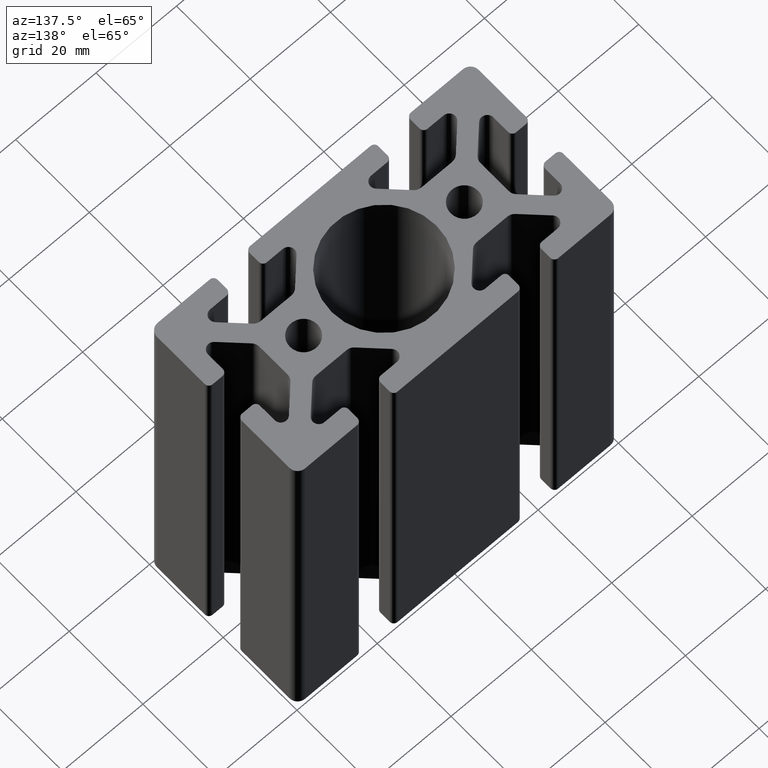
[diagram: clean part render]
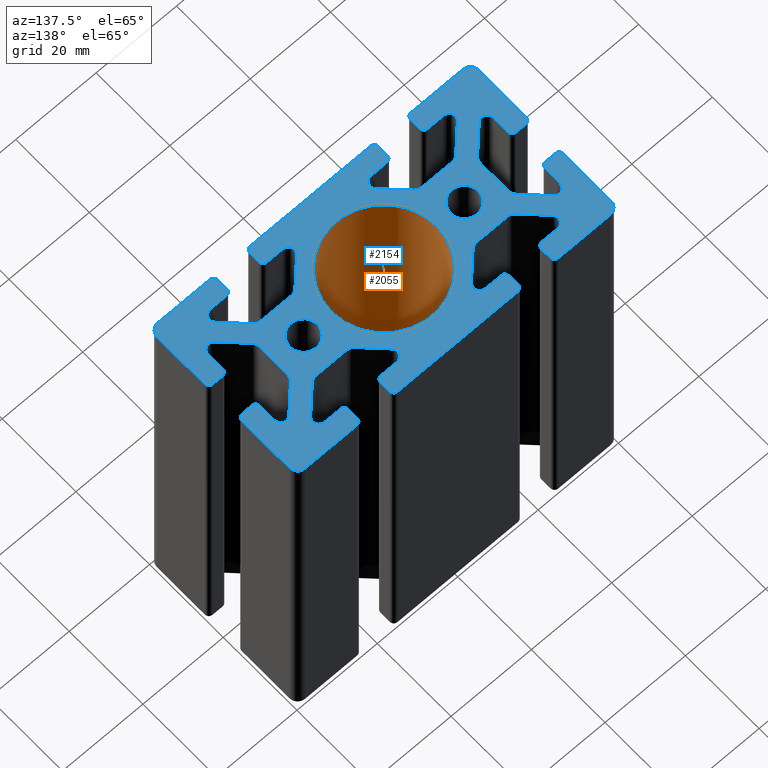
[diagram: same view with the hole feature highlighted: cylindrical wall and planar end face, labeled with their STEP entity ids]
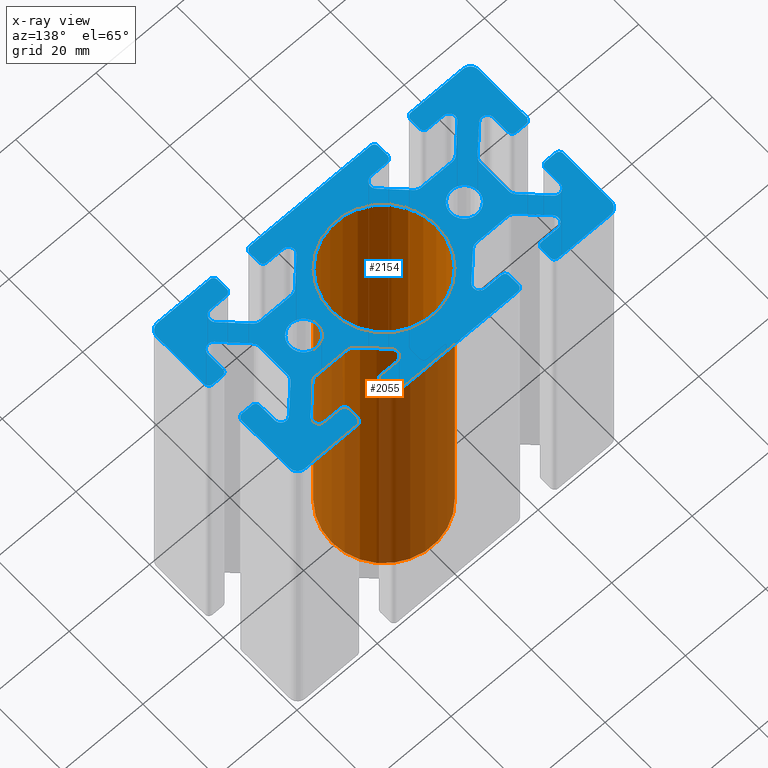
[diagram: x-ray of the same camera — body ghosted, the hole faces saturated]
A machine part, auxiliary view. The highlighted faces form one hole feature of diameter 26 mm: the cylindrical wall (entity #2055, orange) and its adjacent planar end face (entity #2154, blue) — they share a circular edge in the B-rep.
The next image is the same camera in x-ray (body ghosted, the hole faces saturated) — the bore reads through the body.
Wall:
#486=FACE_BOUND('',#606,.T.);
#495=FACE_OUTER_BOUND('',#605,.T.);
#605=EDGE_LOOP('',(#1365));
#606=EDGE_LOOP('',(#1366));
#723=CIRCLE('',#2169,13.);
#724=CIRCLE('',#2170,13.);
#833=VERTEX_POINT('',#3039);
#834=VERTEX_POINT('',#3041);
#1047=EDGE_CURVE('',#833,#833,#723,.T.);
#1048=EDGE_CURVE('',#834,#834,#724,.T.);
#1365=ORIENTED_EDGE('',*,*,#1047,.F.);
#1366=ORIENTED_EDGE('',*,*,#1048,.F.);
#2000=CYLINDRICAL_SURFACE('',#2168,13.);
#2055=ADVANCED_FACE('',(#495,#486),#2000,.F.);
#2168=AXIS2_PLACEMENT_3D('',#3038,#2392,#2393);
#2169=AXIS2_PLACEMENT_3D('',#3040,#2394,#2395);
#2170=AXIS2_PLACEMENT_3D('',#3042,#2396,#2397);
#2392=DIRECTION('center_axis',(0.,0.,1.));
#2393=DIRECTION('ref_axis',(-1.,0.,0.));
#2394=DIRECTION('center_axis',(0.,0.,-1.));
#2395=DIRECTION('ref_axis',(-1.,0.,0.));
#2396=DIRECTION('center_axis',(0.,0.,1.));
#2397=DIRECTION('ref_axis',(-1.,0.,0.));
#3038=CARTESIAN_POINT('Origin',(0.,0.,0.));
#3039=CARTESIAN_POINT('',(13.,-1.59204083889156E-15,100.));
#3040=CARTESIAN_POINT('Origin',(0.,0.,100.));
#3041=CARTESIAN_POINT('',(13.,1.59204083889156E-15,0.));
#3042=CARTESIAN_POINT('Origin',(0.,0.,0.));
End face:
#15=LINE('',#3051,#223);
#20=LINE('',#3065,#228);
#24=LINE('',#3077,#232);
#28=LINE('',#3089,#236);
#32=LINE('',#3101,#240);
#36=LINE('',#3113,#244);
#40=LINE('',#3125,#248);
#45=LINE('',#3144,#253);
#50=LINE('',#3158,#258);
#54=LINE('',#3170,#262);
#58=LINE('',#3182,#266);
#62=LINE('',#3194,#270);
#66=LINE('',#3206,#274);
#70=LINE('',#3218,#278);
#75=LINE('',#3237,#283);
#80=LINE('',#3251,#288);
#84=LINE('',#3263,#292);
#88=LINE('',#3275,#296);
#92=LINE('',#3287,#300);
#96=LINE('',#3299,#304);
#100=LINE('',#3311,#308);
#105=LINE('',#3330,#313);
#112=LINE('',#3353,#320);
#116=LINE('',#3365,#324);
#120=LINE('',#3377,#328);
#124=LINE('',#3389,#332);
#128=LINE('',#3401,#336);
#132=LINE('',#3413,#340);
#137=LINE('',#3431,#345);
#141=LINE('',#3443,#349);
#145=LINE('',#3455,#353);
#149=LINE('',#3467,#357);
#153=LINE('',#3479,#361);
#157=LINE('',#3491,#365);
#163=LINE('',#3511,#371);
#165=LINE('',#3516,#373);
#172=LINE('',#3539,#380);
#176=LINE('',#3551,#384);
#180=LINE('',#3563,#388);
#184=LINE('',#3575,#392);
#188=LINE('',#3587,#396);
#192=LINE('',#3599,#400);
#197=LINE('',#3611,#405);
#200=LINE('',#3617,#408);
#201=LINE('',#3620,#409);
#206=LINE('',#3629,#414);
#207=LINE('',#3632,#415);
#210=LINE('',#3638,#418);
#215=LINE('',#3647,#423);
#216=LINE('',#3650,#424);
#217=LINE('',#3653,#425);
#218=LINE('',#3656,#426);
#223=VECTOR('',#2406,2.50000000000002);
#228=VECTOR('',#2419,4.05025253169417);
#232=VECTOR('',#2431,6.86396103067893);
#236=VECTOR('',#2443,7.68629150101524);
#240=VECTOR('',#2455,6.86396103067893);
#244=VECTOR('',#2467,4.05025253169417);
#248=VECTOR('',#2479,2.50000000000002);
#253=VECTOR('',#2498,2.5);
#258=VECTOR('',#2511,4.05025253169417);
#262=VECTOR('',#2523,6.86396103067893);
#266=VECTOR('',#2535,7.68629150101523);
#270=VECTOR('',#2547,6.86396103067892);
#274=VECTOR('',#2559,4.05025253169417);
#278=VECTOR('',#2571,2.5);
#283=VECTOR('',#2590,2.5);
#288=VECTOR('',#2603,4.05025253169417);
#292=VECTOR('',#2615,6.86396103067893);
#296=VECTOR('',#2627,7.68629150101524);
#300=VECTOR('',#2639,6.86396103067892);
#304=VECTOR('',#2651,4.05025253169417);
#308=VECTOR('',#2663,2.5);
#313=VECTOR('',#2682,2.5);
#320=VECTOR('',#2703,2.5);
#324=VECTOR('',#2715,4.05025253169417);
#328=VECTOR('',#2727,6.86396103067894);
#332=VECTOR('',#2739,7.68629150101523);
#336=VECTOR('',#2751,6.86396103067892);
#340=VECTOR('',#2763,4.05025253169417);
#345=VECTOR('',#2782,4.05025253169417);
#349=VECTOR('',#2794,6.86396103067894);
#353=VECTOR('',#2806,7.68629150101524);
#357=VECTOR('',#2818,6.86396103067892);
#361=VECTOR('',#2830,4.05025253169418);
#365=VECTOR('',#2842,2.5);
#371=VECTOR('',#2862,2.5);
#373=VECTOR('',#2866,2.5);
#380=VECTOR('',#2887,2.5);
#384=VECTOR('',#2899,4.05025253169417);
#388=VECTOR('',#2911,6.86396103067893);
#392=VECTOR('',#2923,7.68629150101524);
#396=VECTOR('',#2935,6.86396103067893);
#400=VECTOR('',#2947,4.05025253169418);
#405=VECTOR('',#2960,13.);
#408=VECTOR('',#2965,13.);
#409=VECTOR('',#2968,13.);
#414=VECTOR('',#2975,13.);
#415=VECTOR('',#2978,13.);
#418=VECTOR('',#2983,13.);
#423=VECTOR('',#2990,13.);
#424=VECTOR('',#2995,30.);
#425=VECTOR('',#3000,30.);
#426=VECTOR('',#3003,13.);
#480=PLANE('',#2367);
#488=FACE_BOUND('',#707,.T.);
#489=FACE_BOUND('',#708,.T.);
#490=FACE_BOUND('',#709,.T.);
#594=FACE_OUTER_BOUND('',#706,.T.);
#706=EDGE_LOOP('',(#1757,#1758,#1759,#1760,#1761,#1762,#1763,#1764,#1765,
#1766,#1767,#1768,#1769,#1770,#1771,#1772,#1773,#1774,#1775,#1776,#1777,
#1778,#1779,#1780,#1781,#1782,#1783,#1784,#1785,#1786,#1787,#1788,#1789,
#1790,#1791,#1792,#1793,#1794,#1795,#1796,#1797,#1798,#1799,#1800,#1801,
#1802,#1803,#1804,#1805,#1806,#1807,#1808,#1809,#1810,#1811,#1812,#1813,
#1814,#1815,#1816,#1817,#1818,#1819,#1820,#1821,#1822,#1823,#1824,#1825,
#1826,#1827,#1828,#1829,#1830,#1831,#1832,#1833,#1834,#1835,#1836,#1837,
#1838,#1839,#1840,#1841,#1842,#1843,#1844,#1845,#1846,#1847,#1848,#1849,
#1850,#1851,#1852,#1853,#1854,#1855,#1856,#1857,#1858,#1859,#1860));
#707=EDGE_LOOP('',(#1861));
#708=EDGE_LOOP('',(#1862));
#709=EDGE_LOOP('',(#1863));
#721=CIRCLE('',#2166,3.39999282000076);
#723=CIRCLE('',#2169,13.);
#725=CIRCLE('',#2172,3.39999282000076);
#727=CIRCLE('',#2176,1.);
#729=CIRCLE('',#2180,1.50000000000001);
#731=CIRCLE('',#2184,1.99999999999999);
#733=CIRCLE('',#2188,2.00000000000002);
#735=CIRCLE('',#2192,1.5);
#737=CIRCLE('',#2196,1.);
#739=CIRCLE('',#2200,1.);
#741=CIRCLE('',#2203,1.);
#743=CIRCLE('',#2207,1.);
#745=CIRCLE('',#2211,1.5);
#747=CIRCLE('',#2215,2.);
#749=CIRCLE('',#2219,2.);
#751=CIRCLE('',#2223,1.5);
#753=CIRCLE('',#2227,0.999999999999998);
#755=CIRCLE('',#2231,1.);
#757=CIRCLE('',#2234,1.);
#759=CIRCLE('',#2238,1.);
#761=CIRCLE('',#2242,1.5);
#763=CIRCLE('',#2246,2.00000000000001);
#765=CIRCLE('',#2250,1.99999999999999);
#767=CIRCLE('',#2254,1.5);
#769=CIRCLE('',#2258,1.);
#771=CIRCLE('',#2262,1.);
#773=CIRCLE('',#2265,1.);
#775=CIRCLE('',#2269,1.);
#777=CIRCLE('',#2272,1.);
#779=CIRCLE('',#2276,1.);
#781=CIRCLE('',#2280,1.49999999999999);
#783=CIRCLE('',#2284,1.99999999999999);
#785=CIRCLE('',#2288,2.);
#787=CIRCLE('',#2292,1.5);
#789=CIRCLE('',#2296,1.);
#791=CIRCLE('',#2299,1.);
#793=CIRCLE('',#2303,1.5);
#795=CIRCLE('',#2307,2.);
#797=CIRCLE('',#2311,2.);
#799=CIRCLE('',#2315,1.49999999999999);
#801=CIRCLE('',#2319,1.);
#803=CIRCLE('',#2323,1.);
#805=CIRCLE('',#2326,1.);
#807=CIRCLE('',#2331,1.);
#809=CIRCLE('',#2334,1.);
#811=CIRCLE('',#2338,1.);
#813=CIRCLE('',#2342,1.5);
#815=CIRCLE('',#2346,2.00000000000001);
#817=CIRCLE('',#2350,1.99999999999999);
#819=CIRCLE('',#2354,1.50000000000001);
#821=CIRCLE('',#2358,1.);
#823=CIRCLE('',#2368,2.00000000000001);
#824=CIRCLE('',#2369,1.99999999999999);
#825=CIRCLE('',#2370,2.);
#826=CIRCLE('',#2371,2.);
#831=VERTEX_POINT('',#3034);
#833=VERTEX_POINT('',#3039);
#835=VERTEX_POINT('',#3044);
#837=VERTEX_POINT('',#3049);
#838=VERTEX_POINT('',#3050);
#841=VERTEX_POINT('',#3058);
#843=VERTEX_POINT('',#3064);
#845=VERTEX_POINT('',#3070);
#847=VERTEX_POINT('',#3076);
#849=VERTEX_POINT('',#3082);
#851=VERTEX_POINT('',#3088);
#853=VERTEX_POINT('',#3094);
#855=VERTEX_POINT('',#3100);
#857=VERTEX_POINT('',#3106);
#859=VERTEX_POINT('',#3112);
#861=VERTEX_POINT('',#3118);
#863=VERTEX_POINT('',#3124);
#865=VERTEX_POINT('',#3130);
#867=VERTEX_POINT('',#3136);
#869=VERTEX_POINT('',#3142);
#870=VERTEX_POINT('',#3143);
#873=VERTEX_POINT('',#3151);
#875=VERTEX_POINT('',#3157);
#877=VERTEX_POINT('',#3163);
#879=VERTEX_POINT('',#3169);
#881=VERTEX_POINT('',#3175);
#883=VERTEX_POINT('',#3181);
#885=VERTEX_POINT('',#3187);
#887=VERTEX_POINT('',#3193);
#889=VERTEX_POINT('',#3199);
#891=VERTEX_POINT('',#3205);
#893=VERTEX_POINT('',#3211);
#895=VERTEX_POINT('',#3217);
#897=VERTEX_POINT('',#3223);
#899=VERTEX_POINT('',#3229);
#901=VERTEX_POINT('',#3235);
#902=VERTEX_POINT('',#3236);
#905=VERTEX_POINT('',#3244);
#907=VERTEX_POINT('',#3250);
#909=VERTEX_POINT('',#3256);
#911=VERTEX_POINT('',#3262);
#913=VERTEX_POINT('',#3268);
#915=VERTEX_POINT('',#3274);
#917=VERTEX_POINT('',#3280);
#919=VERTEX_POINT('',#3286);
#921=VERTEX_POINT('',#3292);
#923=VERTEX_POINT('',#3298);
#925=VERTEX_POINT('',#3304);
#927=VERTEX_POINT('',#3310);
#929=VERTEX_POINT('',#3316);
#931=VERTEX_POINT('',#3322);
#933=VERTEX_POINT('',#3328);
#934=VERTEX_POINT('',#3329);
#937=VERTEX_POINT('',#3337);
#939=VERTEX_POINT('',#3343);
#940=VERTEX_POINT('',#3344);
#943=VERTEX_POINT('',#3352);
#945=VERTEX_POINT('',#3358);
#947=VERTEX_POINT('',#3364);
#949=VERTEX_POINT('',#3370);
#951=VERTEX_POINT('',#3376);
#953=VERTEX_POINT('',#3382);
#955=VERTEX_POINT('',#3388);
#957=VERTEX_POINT('',#3394);
#959=VERTEX_POINT('',#3400);
#961=VERTEX_POINT('',#3406);
#963=VERTEX_POINT('',#3412);
#965=VERTEX_POINT('',#3421);
#966=VERTEX_POINT('',#3422);
#969=VERTEX_POINT('',#3430);
#971=VERTEX_POINT('',#3436);
#973=VERTEX_POINT('',#3442);
#975=VERTEX_POINT('',#3448);
#977=VERTEX_POINT('',#3454);
#979=VERTEX_POINT('',#3460);
#981=VERTEX_POINT('',#3466);
#983=VERTEX_POINT('',#3472);
#985=VERTEX_POINT('',#3478);
#987=VERTEX_POINT('',#3484);
#989=VERTEX_POINT('',#3490);
#991=VERTEX_POINT('',#3496);
#993=VERTEX_POINT('',#3502);
#994=VERTEX_POINT('',#3503);
#997=VERTEX_POINT('',#3514);
#998=VERTEX_POINT('',#3515);
#1001=VERTEX_POINT('',#3523);
#1003=VERTEX_POINT('',#3529);
#1004=VERTEX_POINT('',#3530);
#1007=VERTEX_POINT('',#3538);
#1009=VERTEX_POINT('',#3544);
#1011=VERTEX_POINT('',#3550);
#1013=VERTEX_POINT('',#3556);
#1015=VERTEX_POINT('',#3562);
#1017=VERTEX_POINT('',#3568);
#1019=VERTEX_POINT('',#3574);
#1021=VERTEX_POINT('',#3580);
#1023=VERTEX_POINT('',#3586);
#1025=VERTEX_POINT('',#3592);
#1027=VERTEX_POINT('',#3598);
#1030=VERTEX_POINT('',#3609);
#1032=VERTEX_POINT('',#3615);
#1033=VERTEX_POINT('',#3619);
#1036=VERTEX_POINT('',#3627);
#1037=VERTEX_POINT('',#3631);
#1039=VERTEX_POINT('',#3637);
#1042=VERTEX_POINT('',#3645);
#1043=VERTEX_POINT('',#3654);
#1045=EDGE_CURVE('',#831,#831,#721,.T.);
#1047=EDGE_CURVE('',#833,#833,#723,.T.);
#1049=EDGE_CURVE('',#835,#835,#725,.T.);
#1051=EDGE_CURVE('',#837,#838,#15,.T.);
#1055=EDGE_CURVE('',#838,#841,#727,.T.);
#1058=EDGE_CURVE('',#841,#843,#20,.T.);
#1061=EDGE_CURVE('',#843,#845,#729,.T.);
#1064=EDGE_CURVE('',#845,#847,#24,.T.);
#1067=EDGE_CURVE('',#847,#849,#731,.T.);
#1070=EDGE_CURVE('',#849,#851,#28,.T.);
#1073=EDGE_CURVE('',#851,#853,#733,.T.);
#1076=EDGE_CURVE('',#853,#855,#32,.T.);
#1079=EDGE_CURVE('',#855,#857,#735,.T.);
#1082=EDGE_CURVE('',#857,#859,#36,.T.);
#1085=EDGE_CURVE('',#859,#861,#737,.T.);
#1088=EDGE_CURVE('',#861,#863,#40,.T.);
#1091=EDGE_CURVE('',#863,#865,#739,.T.);
#1094=EDGE_CURVE('',#867,#837,#741,.T.);
#1097=EDGE_CURVE('',#869,#870,#45,.T.);
#1101=EDGE_CURVE('',#873,#869,#743,.T.);
#1104=EDGE_CURVE('',#875,#873,#50,.T.);
#1107=EDGE_CURVE('',#877,#875,#745,.T.);
#1110=EDGE_CURVE('',#879,#877,#54,.T.);
#1113=EDGE_CURVE('',#881,#879,#747,.T.);
#1116=EDGE_CURVE('',#883,#881,#58,.T.);
#1119=EDGE_CURVE('',#885,#883,#749,.T.);
#1122=EDGE_CURVE('',#887,#885,#62,.T.);
#1125=EDGE_CURVE('',#889,#887,#751,.T.);
#1128=EDGE_CURVE('',#891,#889,#66,.T.);
#1131=EDGE_CURVE('',#893,#891,#753,.T.);
#1134=EDGE_CURVE('',#895,#893,#70,.T.);
#1137=EDGE_CURVE('',#897,#895,#755,.T.);
#1140=EDGE_CURVE('',#870,#899,#757,.T.);
#1143=EDGE_CURVE('',#901,#902,#75,.T.);
#1147=EDGE_CURVE('',#902,#905,#759,.T.);
#1150=EDGE_CURVE('',#905,#907,#80,.T.);
#1153=EDGE_CURVE('',#907,#909,#761,.T.);
#1156=EDGE_CURVE('',#909,#911,#84,.T.);
#1159=EDGE_CURVE('',#911,#913,#763,.T.);
#1162=EDGE_CURVE('',#913,#915,#88,.T.);
#1165=EDGE_CURVE('',#915,#917,#765,.T.);
#1168=EDGE_CURVE('',#917,#919,#92,.T.);
#1171=EDGE_CURVE('',#919,#921,#767,.T.);
#1174=EDGE_CURVE('',#921,#923,#96,.T.);
#1177=EDGE_CURVE('',#923,#925,#769,.T.);
#1180=EDGE_CURVE('',#925,#927,#100,.T.);
#1183=EDGE_CURVE('',#927,#929,#771,.T.);
#1186=EDGE_CURVE('',#931,#901,#773,.T.);
#1189=EDGE_CURVE('',#933,#934,#105,.T.);
#1193=EDGE_CURVE('',#937,#933,#775,.T.);
#1196=EDGE_CURVE('',#939,#940,#777,.T.);
#1200=EDGE_CURVE('',#943,#939,#112,.T.);
#1203=EDGE_CURVE('',#945,#943,#779,.T.);
#1206=EDGE_CURVE('',#947,#945,#116,.T.);
#1209=EDGE_CURVE('',#949,#947,#781,.T.);
#1212=EDGE_CURVE('',#951,#949,#120,.T.);
#1215=EDGE_CURVE('',#953,#951,#783,.T.);
#1218=EDGE_CURVE('',#955,#953,#124,.T.);
#1221=EDGE_CURVE('',#957,#955,#785,.T.);
#1224=EDGE_CURVE('',#959,#957,#128,.T.);
#1227=EDGE_CURVE('',#961,#959,#787,.T.);
#1230=EDGE_CURVE('',#963,#961,#132,.T.);
#1233=EDGE_CURVE('',#934,#963,#789,.T.);
#1235=EDGE_CURVE('',#965,#966,#791,.T.);
#1239=EDGE_CURVE('',#966,#969,#137,.T.);
#1242=EDGE_CURVE('',#969,#971,#793,.T.);
#1245=EDGE_CURVE('',#971,#973,#141,.T.);
#1248=EDGE_CURVE('',#973,#975,#795,.T.);
#1251=EDGE_CURVE('',#975,#977,#145,.T.);
#1254=EDGE_CURVE('',#977,#979,#797,.T.);
#1257=EDGE_CURVE('',#979,#981,#149,.T.);
#1260=EDGE_CURVE('',#981,#983,#799,.T.);
#1263=EDGE_CURVE('',#983,#985,#153,.T.);
#1266=EDGE_CURVE('',#985,#987,#801,.T.);
#1269=EDGE_CURVE('',#987,#989,#157,.T.);
#1272=EDGE_CURVE('',#989,#991,#803,.T.);
#1275=EDGE_CURVE('',#993,#994,#805,.T.);
#1279=EDGE_CURVE('',#994,#965,#163,.T.);
#1281=EDGE_CURVE('',#997,#998,#165,.T.);
#1285=EDGE_CURVE('',#1001,#997,#807,.T.);
#1288=EDGE_CURVE('',#1003,#1004,#809,.T.);
#1292=EDGE_CURVE('',#1007,#1003,#172,.T.);
#1295=EDGE_CURVE('',#1009,#1007,#811,.T.);
#1298=EDGE_CURVE('',#1011,#1009,#176,.T.);
#1301=EDGE_CURVE('',#1013,#1011,#813,.T.);
#1304=EDGE_CURVE('',#1015,#1013,#180,.T.);
#1307=EDGE_CURVE('',#1017,#1015,#815,.T.);
#1310=EDGE_CURVE('',#1019,#1017,#184,.T.);
#1313=EDGE_CURVE('',#1021,#1019,#817,.T.);
#1316=EDGE_CURVE('',#1023,#1021,#188,.T.);
#1319=EDGE_CURVE('',#1025,#1023,#819,.T.);
#1322=EDGE_CURVE('',#1027,#1025,#192,.T.);
#1325=EDGE_CURVE('',#998,#1027,#821,.T.);
#1329=EDGE_CURVE('',#1030,#865,#197,.T.);
#1332=EDGE_CURVE('',#1032,#899,#200,.T.);
#1333=EDGE_CURVE('',#897,#1033,#201,.T.);
#1338=EDGE_CURVE('',#1036,#991,#206,.T.);
#1339=EDGE_CURVE('',#937,#1037,#207,.T.);
#1342=EDGE_CURVE('',#1001,#1039,#210,.T.);
#1347=EDGE_CURVE('',#1042,#929,#215,.T.);
#1348=EDGE_CURVE('',#1039,#1030,#823,.T.);
#1349=EDGE_CURVE('',#931,#1004,#216,.T.);
#1350=EDGE_CURVE('',#1033,#1042,#824,.T.);
#1351=EDGE_CURVE('',#1037,#1032,#825,.T.);
#1352=EDGE_CURVE('',#993,#940,#217,.T.);
#1353=EDGE_CURVE('',#1043,#1036,#826,.T.);
#1354=EDGE_CURVE('',#867,#1043,#218,.T.);
#1757=ORIENTED_EDGE('',*,*,#1094,.T.);
#1758=ORIENTED_EDGE('',*,*,#1051,.T.);
#1759=ORIENTED_EDGE('',*,*,#1055,.T.);
#1760=ORIENTED_EDGE('',*,*,#1058,.T.);
#1761=ORIENTED_EDGE('',*,*,#1061,.T.);
#1762=ORIENTED_EDGE('',*,*,#1064,.T.);
#1763=ORIENTED_EDGE('',*,*,#1067,.T.);
#1764=ORIENTED_EDGE('',*,*,#1070,.T.);
#1765=ORIENTED_EDGE('',*,*,#1073,.T.);
#1766=ORIENTED_EDGE('',*,*,#1076,.T.);
#1767=ORIENTED_EDGE('',*,*,#1079,.T.);
#1768=ORIENTED_EDGE('',*,*,#1082,.T.);
#1769=ORIENTED_EDGE('',*,*,#1085,.T.);
#1770=ORIENTED_EDGE('',*,*,#1088,.T.);
#1771=ORIENTED_EDGE('',*,*,#1091,.T.);
#1772=ORIENTED_EDGE('',*,*,#1329,.F.);
#1773=ORIENTED_EDGE('',*,*,#1348,.F.);
#1774=ORIENTED_EDGE('',*,*,#1342,.F.);
#1775=ORIENTED_EDGE('',*,*,#1285,.T.);
#1776=ORIENTED_EDGE('',*,*,#1281,.T.);
#1777=ORIENTED_EDGE('',*,*,#1325,.T.);
#1778=ORIENTED_EDGE('',*,*,#1322,.T.);
#1779=ORIENTED_EDGE('',*,*,#1319,.T.);
#1780=ORIENTED_EDGE('',*,*,#1316,.T.);
#1781=ORIENTED_EDGE('',*,*,#1313,.T.);
#1782=ORIENTED_EDGE('',*,*,#1310,.T.);
#1783=ORIENTED_EDGE('',*,*,#1307,.T.);
#1784=ORIENTED_EDGE('',*,*,#1304,.T.);
#1785=ORIENTED_EDGE('',*,*,#1301,.T.);
#1786=ORIENTED_EDGE('',*,*,#1298,.T.);
#1787=ORIENTED_EDGE('',*,*,#1295,.T.);
#1788=ORIENTED_EDGE('',*,*,#1292,.T.);
#1789=ORIENTED_EDGE('',*,*,#1288,.T.);
#1790=ORIENTED_EDGE('',*,*,#1349,.F.);
#1791=ORIENTED_EDGE('',*,*,#1186,.T.);
#1792=ORIENTED_EDGE('',*,*,#1143,.T.);
#1793=ORIENTED_EDGE('',*,*,#1147,.T.);
#1794=ORIENTED_EDGE('',*,*,#1150,.T.);
#1795=ORIENTED_EDGE('',*,*,#1153,.T.);
#1796=ORIENTED_EDGE('',*,*,#1156,.T.);
#1797=ORIENTED_EDGE('',*,*,#1159,.T.);
#1798=ORIENTED_EDGE('',*,*,#1162,.T.);
#1799=ORIENTED_EDGE('',*,*,#1165,.T.);
#1800=ORIENTED_EDGE('',*,*,#1168,.T.);
#1801=ORIENTED_EDGE('',*,*,#1171,.T.);
#1802=ORIENTED_EDGE('',*,*,#1174,.T.);
#1803=ORIENTED_EDGE('',*,*,#1177,.T.);
#1804=ORIENTED_EDGE('',*,*,#1180,.T.);
#1805=ORIENTED_EDGE('',*,*,#1183,.T.);
#1806=ORIENTED_EDGE('',*,*,#1347,.F.);
#1807=ORIENTED_EDGE('',*,*,#1350,.F.);
#1808=ORIENTED_EDGE('',*,*,#1333,.F.);
#1809=ORIENTED_EDGE('',*,*,#1137,.T.);
#1810=ORIENTED_EDGE('',*,*,#1134,.T.);
#1811=ORIENTED_EDGE('',*,*,#1131,.T.);
#1812=ORIENTED_EDGE('',*,*,#1128,.T.);
#1813=ORIENTED_EDGE('',*,*,#1125,.T.);
#1814=ORIENTED_EDGE('',*,*,#1122,.T.);
#1815=ORIENTED_EDGE('',*,*,#1119,.T.);
#1816=ORIENTED_EDGE('',*,*,#1116,.T.);
#1817=ORIENTED_EDGE('',*,*,#1113,.T.);
#1818=ORIENTED_EDGE('',*,*,#1110,.T.);
#1819=ORIENTED_EDGE('',*,*,#1107,.T.);
#1820=ORIENTED_EDGE('',*,*,#1104,.T.);
#1821=ORIENTED_EDGE('',*,*,#1101,.T.);
#1822=ORIENTED_EDGE('',*,*,#1097,.T.);
#1823=ORIENTED_EDGE('',*,*,#1140,.T.);
#1824=ORIENTED_EDGE('',*,*,#1332,.F.);
#1825=ORIENTED_EDGE('',*,*,#1351,.F.);
#1826=ORIENTED_EDGE('',*,*,#1339,.F.);
#1827=ORIENTED_EDGE('',*,*,#1193,.T.);
#1828=ORIENTED_EDGE('',*,*,#1189,.T.);
#1829=ORIENTED_EDGE('',*,*,#1233,.T.);
#1830=ORIENTED_EDGE('',*,*,#1230,.T.);
#1831=ORIENTED_EDGE('',*,*,#1227,.T.);
#1832=ORIENTED_EDGE('',*,*,#1224,.T.);
#1833=ORIENTED_EDGE('',*,*,#1221,.T.);
#1834=ORIENTED_EDGE('',*,*,#1218,.T.);
#1835=ORIENTED_EDGE('',*,*,#1215,.T.);
#1836=ORIENTED_EDGE('',*,*,#1212,.T.);
#1837=ORIENTED_EDGE('',*,*,#1209,.T.);
#1838=ORIENTED_EDGE('',*,*,#1206,.T.);
#1839=ORIENTED_EDGE('',*,*,#1203,.T.);
#1840=ORIENTED_EDGE('',*,*,#1200,.T.);
#1841=ORIENTED_EDGE('',*,*,#1196,.T.);
#1842=ORIENTED_EDGE('',*,*,#1352,.F.);
#1843=ORIENTED_EDGE('',*,*,#1275,.T.);
#1844=ORIENTED_EDGE('',*,*,#1279,.T.);
#1845=ORIENTED_EDGE('',*,*,#1235,.T.);
#1846=ORIENTED_EDGE('',*,*,#1239,.T.);
#1847=ORIENTED_EDGE('',*,*,#1242,.T.);
#1848=ORIENTED_EDGE('',*,*,#1245,.T.);
#1849=ORIENTED_EDGE('',*,*,#1248,.T.);
#1850=ORIENTED_EDGE('',*,*,#1251,.T.);
#1851=ORIENTED_EDGE('',*,*,#1254,.T.);
#1852=ORIENTED_EDGE('',*,*,#1257,.T.);
#1853=ORIENTED_EDGE('',*,*,#1260,.T.);
#1854=ORIENTED_EDGE('',*,*,#1263,.T.);
#1855=ORIENTED_EDGE('',*,*,#1266,.T.);
#1856=ORIENTED_EDGE('',*,*,#1269,.T.);
#1857=ORIENTED_EDGE('',*,*,#1272,.T.);
#1858=ORIENTED_EDGE('',*,*,#1338,.F.);
#1859=ORIENTED_EDGE('',*,*,#1353,.F.);
#1860=ORIENTED_EDGE('',*,*,#1354,.F.);
#1861=ORIENTED_EDGE('',*,*,#1049,.T.);
#1862=ORIENTED_EDGE('',*,*,#1047,.T.);
#1863=ORIENTED_EDGE('',*,*,#1045,.T.);
#2154=ADVANCED_FACE('',(#594,#488,#489,#490),#480,.T.);
#2166=AXIS2_PLACEMENT_3D('',#3035,#2388,#2389);
#2169=AXIS2_PLACEMENT_3D('',#3040,#2394,#2395);
#2172=AXIS2_PLACEMENT_3D('',#3045,#2400,#2401);
#2176=AXIS2_PLACEMENT_3D('',#3059,#2412,#2413);
#2180=AXIS2_PLACEMENT_3D('',#3071,#2424,#2425);
#2184=AXIS2_PLACEMENT_3D('',#3083,#2436,#2437);
#2188=AXIS2_PLACEMENT_3D('',#3095,#2448,#2449);
#2192=AXIS2_PLACEMENT_3D('',#3107,#2460,#2461);
#2196=AXIS2_PLACEMENT_3D('',#3119,#2472,#2473);
#2200=AXIS2_PLACEMENT_3D('',#3131,#2484,#2485);
#2203=AXIS2_PLACEMENT_3D('',#3137,#2491,#2492);
#2207=AXIS2_PLACEMENT_3D('',#3152,#2504,#2505);
#2211=AXIS2_PLACEMENT_3D('',#3164,#2516,#2517);
#2215=AXIS2_PLACEMENT_3D('',#3176,#2528,#2529);
#2219=AXIS2_PLACEMENT_3D('',#3188,#2540,#2541);
#2223=AXIS2_PLACEMENT_3D('',#3200,#2552,#2553);
#2227=AXIS2_PLACEMENT_3D('',#3212,#2564,#2565);
#2231=AXIS2_PLACEMENT_3D('',#3224,#2576,#2577);
#2234=AXIS2_PLACEMENT_3D('',#3230,#2583,#2584);
#2238=AXIS2_PLACEMENT_3D('',#3245,#2596,#2597);
#2242=AXIS2_PLACEMENT_3D('',#3257,#2608,#2609);
#2246=AXIS2_PLACEMENT_3D('',#3269,#2620,#2621);
#2250=AXIS2_PLACEMENT_3D('',#3281,#2632,#2633);
#2254=AXIS2_PLACEMENT_3D('',#3293,#2644,#2645);
#2258=AXIS2_PLACEMENT_3D('',#3305,#2656,#2657);
#2262=AXIS2_PLACEMENT_3D('',#3317,#2668,#2669);
#2265=AXIS2_PLACEMENT_3D('',#3323,#2675,#2676);
#2269=AXIS2_PLACEMENT_3D('',#3338,#2688,#2689);
#2272=AXIS2_PLACEMENT_3D('',#3345,#2695,#2696);
#2276=AXIS2_PLACEMENT_3D('',#3359,#2708,#2709);
#2280=AXIS2_PLACEMENT_3D('',#3371,#2720,#2721);
#2284=AXIS2_PLACEMENT_3D('',#3383,#2732,#2733);
#2288=AXIS2_PLACEMENT_3D('',#3395,#2744,#2745);
#2292=AXIS2_PLACEMENT_3D('',#3407,#2756,#2757);
#2296=AXIS2_PLACEMENT_3D('',#3418,#2768,#2769);
#2299=AXIS2_PLACEMENT_3D('',#3423,#2774,#2775);
#2303=AXIS2_PLACEMENT_3D('',#3437,#2787,#2788);
#2307=AXIS2_PLACEMENT_3D('',#3449,#2799,#2800);
#2311=AXIS2_PLACEMENT_3D('',#3461,#2811,#2812);
#2315=AXIS2_PLACEMENT_3D('',#3473,#2823,#2824);
#2319=AXIS2_PLACEMENT_3D('',#3485,#2835,#2836);
#2323=AXIS2_PLACEMENT_3D('',#3497,#2847,#2848);
#2326=AXIS2_PLACEMENT_3D('',#3504,#2854,#2855);
#2331=AXIS2_PLACEMENT_3D('',#3524,#2872,#2873);
#2334=AXIS2_PLACEMENT_3D('',#3531,#2879,#2880);
#2338=AXIS2_PLACEMENT_3D('',#3545,#2892,#2893);
#2342=AXIS2_PLACEMENT_3D('',#3557,#2904,#2905);
#2346=AXIS2_PLACEMENT_3D('',#3569,#2916,#2917);
#2350=AXIS2_PLACEMENT_3D('',#3581,#2928,#2929);
#2354=AXIS2_PLACEMENT_3D('',#3593,#2940,#2941);
#2358=AXIS2_PLACEMENT_3D('',#3604,#2952,#2953);
#2367=AXIS2_PLACEMENT_3D('',#3648,#2991,#2992);
#2368=AXIS2_PLACEMENT_3D('',#3649,#2993,#2994);
#2369=AXIS2_PLACEMENT_3D('',#3651,#2996,#2997);
#2370=AXIS2_PLACEMENT_3D('',#3652,#2998,#2999);
#2371=AXIS2_PLACEMENT_3D('',#3655,#3001,#3002);
#2388=DIRECTION('center_axis',(0.,0.,-1.));
#2389=DIRECTION('ref_axis',(-1.,0.,0.));
#2394=DIRECTION('center_axis',(0.,0.,-1.));
#2395=DIRECTION('ref_axis',(-1.,0.,0.));
#2400=DIRECTION('center_axis',(0.,0.,-1.));
#2401=DIRECTION('ref_axis',(-1.,0.,0.));
#2406=DIRECTION('',(1.,0.,0.));
#2412=DIRECTION('center_axis',(0.,0.,1.));
#2413=DIRECTION('ref_axis',(-8.88178419700124E-15,1.,0.));
#2419=DIRECTION('',(0.,1.,0.));
#2424=DIRECTION('center_axis',(0.,0.,-1.));
#2425=DIRECTION('ref_axis',(0.707106781186552,0.707106781186543,0.));
#2431=DIRECTION('',(0.707106781186545,-0.70710678118655,0.));
#2436=DIRECTION('center_axis',(0.,0.,-1.));
#2437=DIRECTION('ref_axis',(1.,-4.44089209850065E-15,0.));
#2443=DIRECTION('',(2.88883923925735E-15,-1.,0.));
#2448=DIRECTION('center_axis',(0.,0.,-1.));
#2449=DIRECTION('ref_axis',(0.707106781186542,-0.707106781186553,0.));
#2455=DIRECTION('',(-0.707106781186547,-0.707106781186548,0.));
#2460=DIRECTION('center_axis',(0.,0.,-1.));
#2461=DIRECTION('ref_axis',(-1.,0.,0.));
#2467=DIRECTION('',(-1.09644820014298E-15,1.,0.));
#2472=DIRECTION('center_axis',(0.,0.,1.));
#2473=DIRECTION('ref_axis',(-1.,0.,0.));
#2479=DIRECTION('',(-1.,-7.10542735760095E-15,0.));
#2484=DIRECTION('center_axis',(0.,0.,1.));
#2485=DIRECTION('ref_axis',(0.,-1.,0.));
#2491=DIRECTION('center_axis',(0.,0.,1.));
#2492=DIRECTION('ref_axis',(1.,0.,0.));
#2498=DIRECTION('',(1.,0.,0.));
#2504=DIRECTION('center_axis',(0.,0.,1.));
#2505=DIRECTION('ref_axis',(1.,0.,0.));
#2511=DIRECTION('',(-2.19289640028596E-15,-1.,0.));
#2516=DIRECTION('center_axis',(0.,0.,-1.));
#2517=DIRECTION('ref_axis',(1.,0.,0.));
#2523=DIRECTION('',(0.707106781186546,0.707106781186549,0.));
#2528=DIRECTION('center_axis',(0.,0.,-1.));
#2529=DIRECTION('ref_axis',(-0.707106781186546,0.707106781186549,0.));
#2535=DIRECTION('',(0.,1.,0.));
#2540=DIRECTION('center_axis',(0.,0.,-1.));
#2541=DIRECTION('ref_axis',(-1.,-4.44089209850062E-15,0.));
#2547=DIRECTION('',(-0.707106781186547,0.707106781186548,0.));
#2552=DIRECTION('center_axis',(0.,0.,-1.));
#2553=DIRECTION('ref_axis',(-0.707106781186551,-0.707106781186545,0.));
#2559=DIRECTION('',(0.,-1.,0.));
#2564=DIRECTION('center_axis',(0.,0.,1.));
#2565=DIRECTION('ref_axis',(0.,-1.,0.));
#2571=DIRECTION('',(-1.,-1.77635683940025E-15,0.));
#2576=DIRECTION('center_axis',(0.,0.,1.));
#2577=DIRECTION('ref_axis',(-1.,-8.88178419700128E-15,0.));
#2583=DIRECTION('center_axis',(0.,0.,1.));
#2584=DIRECTION('ref_axis',(0.,1.,0.));
#2590=DIRECTION('',(0.,1.,0.));
#2596=DIRECTION('center_axis',(0.,0.,1.));
#2597=DIRECTION('ref_axis',(-1.,0.,0.));
#2603=DIRECTION('',(-1.,-5.4822410007149E-16,0.));
#2608=DIRECTION('center_axis',(0.,0.,-1.));
#2609=DIRECTION('ref_axis',(-0.707106781186545,0.70710678118655,0.));
#2615=DIRECTION('',(0.707106781186547,0.707106781186548,0.));
#2620=DIRECTION('center_axis',(0.,0.,-1.));
#2621=DIRECTION('ref_axis',(0.,1.,0.));
#2627=DIRECTION('',(1.,-5.77767847851471E-16,0.));
#2632=DIRECTION('center_axis',(0.,0.,-1.));
#2633=DIRECTION('ref_axis',(0.707106781186548,0.707106781186548,0.));
#2639=DIRECTION('',(0.707106781186546,-0.707106781186549,0.));
#2644=DIRECTION('center_axis',(0.,0.,-1.));
#2645=DIRECTION('ref_axis',(0.,-1.,0.));
#2651=DIRECTION('',(-1.,-1.64467230021447E-15,0.));
#2656=DIRECTION('center_axis',(0.,0.,1.));
#2657=DIRECTION('ref_axis',(0.,-1.,0.));
#2663=DIRECTION('',(0.,-1.,0.));
#2668=DIRECTION('center_axis',(0.,0.,1.));
#2669=DIRECTION('ref_axis',(1.,4.44089209850066E-15,0.));
#2675=DIRECTION('center_axis',(0.,0.,1.));
#2676=DIRECTION('ref_axis',(4.44089209850056E-15,1.,0.));
#2682=DIRECTION('',(0.,-1.,0.));
#2688=DIRECTION('center_axis',(0.,0.,1.));
#2689=DIRECTION('ref_axis',(-4.44089209850056E-15,-1.,0.));
#2695=DIRECTION('center_axis',(0.,0.,1.));
#2696=DIRECTION('ref_axis',(-1.,0.,0.));
#2703=DIRECTION('',(0.,1.,0.));
#2708=DIRECTION('center_axis',(0.,0.,1.));
#2709=DIRECTION('ref_axis',(0.,1.,0.));
#2715=DIRECTION('',(1.,0.,0.));
#2720=DIRECTION('center_axis',(0.,0.,-1.));
#2721=DIRECTION('ref_axis',(5.92118946466754E-15,1.,0.));
#2727=DIRECTION('',(-0.707106781186547,0.707106781186548,0.));
#2732=DIRECTION('center_axis',(0.,0.,-1.));
#2733=DIRECTION('ref_axis',(-0.707106781186545,-0.70710678118655,0.));
#2739=DIRECTION('',(-1.,5.77767847851471E-16,0.));
#2744=DIRECTION('center_axis',(0.,0.,-1.));
#2745=DIRECTION('ref_axis',(0.,-1.,0.));
#2751=DIRECTION('',(-0.707106781186549,-0.707106781186546,0.));
#2756=DIRECTION('center_axis',(0.,0.,-1.));
#2757=DIRECTION('ref_axis',(0.70710678118654,-0.707106781186555,0.));
#2763=DIRECTION('',(1.,1.09644820014298E-15,0.));
#2768=DIRECTION('center_axis',(0.,0.,1.));
#2769=DIRECTION('ref_axis',(1.,4.44089209850066E-15,0.));
#2774=DIRECTION('center_axis',(0.,0.,1.));
#2775=DIRECTION('ref_axis',(1.,4.4408920985006E-15,0.));
#2782=DIRECTION('',(1.,-4.38579280057192E-15,0.));
#2787=DIRECTION('center_axis',(0.,0.,-1.));
#2788=DIRECTION('ref_axis',(0.707106781186549,-0.707106781186546,0.));
#2794=DIRECTION('',(-0.707106781186549,-0.707106781186546,0.));
#2799=DIRECTION('center_axis',(0.,0.,-1.));
#2800=DIRECTION('ref_axis',(-4.44089209850062E-15,-1.,0.));
#2806=DIRECTION('',(-1.,0.,0.));
#2811=DIRECTION('center_axis',(0.,0.,-1.));
#2812=DIRECTION('ref_axis',(-0.707106781186544,-0.707106781186551,0.));
#2818=DIRECTION('',(-0.707106781186546,0.707106781186549,0.));
#2823=DIRECTION('center_axis',(0.,0.,-1.));
#2824=DIRECTION('ref_axis',(0.,1.,0.));
#2830=DIRECTION('',(1.,4.38579280057191E-15,0.));
#2835=DIRECTION('center_axis',(0.,0.,1.));
#2836=DIRECTION('ref_axis',(0.,1.,0.));
#2842=DIRECTION('',(0.,1.,0.));
#2847=DIRECTION('center_axis',(0.,0.,1.));
#2848=DIRECTION('ref_axis',(-1.,0.,0.));
#2854=DIRECTION('center_axis',(0.,0.,1.));
#2855=DIRECTION('ref_axis',(8.88178419700148E-15,-1.,0.));
#2862=DIRECTION('',(0.,-1.,0.));
#2866=DIRECTION('',(0.,1.,0.));
#2872=DIRECTION('center_axis',(0.,0.,1.));
#2873=DIRECTION('ref_axis',(0.,1.,0.));
#2879=DIRECTION('center_axis',(0.,0.,1.));
#2880=DIRECTION('ref_axis',(1.,0.,0.));
#2887=DIRECTION('',(-3.5527136788005E-15,-1.,0.));
#2892=DIRECTION('center_axis',(0.,0.,1.));
#2893=DIRECTION('ref_axis',(0.,-1.,0.));
#2899=DIRECTION('',(-1.,1.09644820014298E-15,0.));
#2904=DIRECTION('center_axis',(0.,0.,-1.));
#2905=DIRECTION('ref_axis',(0.,-1.,0.));
#2911=DIRECTION('',(0.707106781186548,-0.707106781186548,0.));
#2916=DIRECTION('center_axis',(0.,0.,-1.));
#2917=DIRECTION('ref_axis',(0.707106781186549,0.707106781186546,0.));
#2923=DIRECTION('',(1.,0.,0.));
#2928=DIRECTION('center_axis',(0.,0.,-1.));
#2929=DIRECTION('ref_axis',(4.44089209850065E-15,1.,0.));
#2935=DIRECTION('',(0.707106781186549,0.707106781186546,0.));
#2940=DIRECTION('center_axis',(0.,0.,-1.));
#2941=DIRECTION('ref_axis',(-0.707106781186549,0.707106781186546,0.));
#2947=DIRECTION('',(-1.,-5.48224100071489E-16,0.));
#2952=DIRECTION('center_axis',(0.,0.,1.));
#2953=DIRECTION('ref_axis',(-1.,0.,0.));
#2960=DIRECTION('',(-2.46716227694479E-16,1.,0.));
#2965=DIRECTION('',(1.2335811384724E-16,-1.,0.));
#2968=DIRECTION('',(1.2335811384724E-16,-1.,0.));
#2975=DIRECTION('',(1.,1.1686558153949E-16,0.));
#2978=DIRECTION('',(1.,1.1686558153949E-16,0.));
#2983=DIRECTION('',(-1.,-2.92163953848725E-17,0.));
#2990=DIRECTION('',(-1.,-2.92163953848725E-17,0.));
#2991=DIRECTION('center_axis',(0.,0.,1.));
#2992=DIRECTION('ref_axis',(1.,0.,0.));
#2993=DIRECTION('center_axis',(0.,0.,-1.));
#2994=DIRECTION('ref_axis',(-1.,0.,0.));
#2995=DIRECTION('',(-1.,-2.92163953848725E-17,0.));
#2996=DIRECTION('center_axis',(0.,0.,-1.));
#2997=DIRECTION('ref_axis',(-2.22044604925033E-15,-1.,0.));
#2998=DIRECTION('center_axis',(0.,0.,-1.));
#2999=DIRECTION('ref_axis',(1.,0.,0.));
#3000=DIRECTION('',(1.,1.1686558153949E-16,0.));
#3001=DIRECTION('center_axis',(0.,0.,-1.));
#3002=DIRECTION('ref_axis',(-2.22044604925031E-15,1.,0.));
#3003=DIRECTION('',(-2.46716227694479E-16,1.,0.));
#3034=CARTESIAN_POINT('',(-16.6000071799992,-4.16379032413792E-16,100.));
#3035=CARTESIAN_POINT('Origin',(-20.,0.,100.));
#3039=CARTESIAN_POINT('',(13.,-1.59204083889156E-15,100.));
#3040=CARTESIAN_POINT('Origin',(0.,0.,100.));
#3044=CARTESIAN_POINT('',(23.3999928200008,-9.29816322941504E-15,100.));
#3045=CARTESIAN_POINT('Origin',(20.,-8.88178419700125E-15,100.));
#3049=CARTESIAN_POINT('',(-39.,4.,100.));
#3050=CARTESIAN_POINT('',(-36.5,4.,100.));
#3051=CARTESIAN_POINT('',(-18.25,4.,100.));
#3058=CARTESIAN_POINT('',(-35.5,5.,100.));
#3059=CARTESIAN_POINT('Origin',(-36.5,5.,100.));
#3064=CARTESIAN_POINT('',(-35.5,9.05025253169416,100.));
#3065=CARTESIAN_POINT('',(-35.5,4.52512626584708,100.));
#3070=CARTESIAN_POINT('',(-32.9393398282202,10.110912703474,100.));
#3071=CARTESIAN_POINT('Origin',(-34.,9.05025253169418,100.));
#3076=CARTESIAN_POINT('',(-28.0857864376269,5.25735931288071,100.));
#3077=CARTESIAN_POINT('',(-19.75,-3.0784271247462,100.));
#3082=CARTESIAN_POINT('',(-27.5,3.84314575050762,100.));
#3083=CARTESIAN_POINT('Origin',(-29.5,3.84314575050763,100.));
#3088=CARTESIAN_POINT('',(-27.5,-3.84314575050762,100.));
#3089=CARTESIAN_POINT('',(-27.5,-1.92157287525385,100.));
#3094=CARTESIAN_POINT('',(-28.0857864376269,-5.25735931288072,100.));
#3095=CARTESIAN_POINT('Origin',(-29.5,-3.8431457505076,100.));
#3100=CARTESIAN_POINT('',(-32.9393398282202,-10.110912703474,100.));
#3101=CARTESIAN_POINT('',(-22.1767766952966,0.651650429449554,100.));
#3106=CARTESIAN_POINT('',(-35.5,-9.05025253169417,100.));
#3107=CARTESIAN_POINT('Origin',(-34.,-9.05025253169417,100.));
#3112=CARTESIAN_POINT('',(-35.5,-5.,100.));
#3113=CARTESIAN_POINT('',(-35.5,-2.50000000000002,100.));
#3118=CARTESIAN_POINT('',(-36.5,-4.,100.));
#3119=CARTESIAN_POINT('Origin',(-36.5,-5.,100.));
#3124=CARTESIAN_POINT('',(-39.,-4.00000000000002,100.));
#3125=CARTESIAN_POINT('',(-19.5,-3.99999999999988,100.));
#3130=CARTESIAN_POINT('',(-40.,-5.,100.));
#3131=CARTESIAN_POINT('Origin',(-39.,-5.,100.));
#3136=CARTESIAN_POINT('',(-40.,5.,100.));
#3137=CARTESIAN_POINT('Origin',(-39.,5.,100.));
#3142=CARTESIAN_POINT('',(36.5,4.,100.));
#3143=CARTESIAN_POINT('',(39.,4.,100.));
#3144=CARTESIAN_POINT('',(19.5,4.,100.));
#3151=CARTESIAN_POINT('',(35.5,5.,100.));
#3152=CARTESIAN_POINT('Origin',(36.5,5.,100.));
#3157=CARTESIAN_POINT('',(35.5,9.05025253169416,100.));
#3158=CARTESIAN_POINT('',(35.5,2.49999999999996,100.));
#3163=CARTESIAN_POINT('',(32.9393398282202,10.110912703474,100.));
#3164=CARTESIAN_POINT('Origin',(34.,9.05025253169416,100.));
#3169=CARTESIAN_POINT('',(28.0857864376269,5.25735931288071,100.));
#3170=CARTESIAN_POINT('',(22.1767766952967,-0.651650429449556,100.));
#3175=CARTESIAN_POINT('',(27.5,3.84314575050761,100.));
#3176=CARTESIAN_POINT('Origin',(29.5,3.84314575050761,100.));
#3181=CARTESIAN_POINT('',(27.5,-3.84314575050762,100.));
#3182=CARTESIAN_POINT('',(27.5,1.92157287525381,100.));
#3187=CARTESIAN_POINT('',(28.0857864376269,-5.25735931288072,100.));
#3188=CARTESIAN_POINT('Origin',(29.5,-3.84314575050762,100.));
#3193=CARTESIAN_POINT('',(32.9393398282202,-10.110912703474,100.));
#3194=CARTESIAN_POINT('',(19.75,3.0784271247462,100.));
#3199=CARTESIAN_POINT('',(35.5,-9.05025253169418,100.));
#3200=CARTESIAN_POINT('Origin',(34.,-9.05025253169417,100.));
#3205=CARTESIAN_POINT('',(35.5,-5.,100.));
#3206=CARTESIAN_POINT('',(35.5,-4.52512626584709,100.));
#3211=CARTESIAN_POINT('',(36.5,-4.00000000000001,100.));
#3212=CARTESIAN_POINT('Origin',(36.5,-5.00000000000001,100.));
#3217=CARTESIAN_POINT('',(39.,-4.00000000000001,100.));
#3218=CARTESIAN_POINT('',(18.25,-4.00000000000004,100.));
#3223=CARTESIAN_POINT('',(40.,-5.,100.));
#3224=CARTESIAN_POINT('Origin',(39.,-5.00000000000001,100.));
#3229=CARTESIAN_POINT('',(40.,5.,100.));
#3230=CARTESIAN_POINT('Origin',(39.,5.,100.));
#3235=CARTESIAN_POINT('',(16.,-19.,100.));
#3236=CARTESIAN_POINT('',(16.,-16.5,100.));
#3237=CARTESIAN_POINT('',(16.,-8.25,100.));
#3244=CARTESIAN_POINT('',(15.,-15.5,100.));
#3245=CARTESIAN_POINT('Origin',(15.,-16.5,100.));
#3250=CARTESIAN_POINT('',(10.9497474683058,-15.5,100.));
#3251=CARTESIAN_POINT('',(5.47487373415292,-15.5,100.));
#3256=CARTESIAN_POINT('',(9.88908729652602,-12.9393398282202,100.));
#3257=CARTESIAN_POINT('Origin',(10.9497474683058,-14.,100.));
#3262=CARTESIAN_POINT('',(14.7426406871193,-8.0857864376269,100.));
#3263=CARTESIAN_POINT('',(13.0784271247462,-9.75,100.));
#3268=CARTESIAN_POINT('',(16.1568542494924,-7.5,100.));
#3269=CARTESIAN_POINT('Origin',(16.1568542494924,-9.50000000000001,100.));
#3274=CARTESIAN_POINT('',(23.8431457505076,-7.5,100.));
#3275=CARTESIAN_POINT('',(11.9215728752538,-7.5,100.));
#3280=CARTESIAN_POINT('',(25.2573593128807,-8.08578643762691,100.));
#3281=CARTESIAN_POINT('Origin',(23.8431457505076,-9.5,100.));
#3286=CARTESIAN_POINT('',(30.110912703474,-12.9393398282202,100.));
#3287=CARTESIAN_POINT('',(19.3483495705505,-2.17677669529663,100.));
#3292=CARTESIAN_POINT('',(29.0502525316942,-15.5,100.));
#3293=CARTESIAN_POINT('Origin',(29.0502525316942,-14.,100.));
#3298=CARTESIAN_POINT('',(25.,-15.5,100.));
#3299=CARTESIAN_POINT('',(12.5,-15.5,100.));
#3304=CARTESIAN_POINT('',(24.,-16.5,100.));
#3305=CARTESIAN_POINT('Origin',(25.,-16.5,100.));
#3310=CARTESIAN_POINT('',(24.,-19.,100.));
#3311=CARTESIAN_POINT('',(24.,-9.5,100.));
#3316=CARTESIAN_POINT('',(25.,-20.,100.));
#3317=CARTESIAN_POINT('Origin',(25.,-19.,100.));
#3322=CARTESIAN_POINT('',(15.,-20.,100.));
#3323=CARTESIAN_POINT('Origin',(15.,-19.,100.));
#3328=CARTESIAN_POINT('',(24.,19.,100.));
#3329=CARTESIAN_POINT('',(24.,16.5,100.));
#3330=CARTESIAN_POINT('',(24.,8.25,100.));
#3337=CARTESIAN_POINT('',(25.,20.,100.));
#3338=CARTESIAN_POINT('Origin',(25.,19.,100.));
#3343=CARTESIAN_POINT('',(16.,19.,100.));
#3344=CARTESIAN_POINT('',(15.,20.,100.));
#3345=CARTESIAN_POINT('Origin',(15.,19.,100.));
#3352=CARTESIAN_POINT('',(16.,16.5,100.));
#3353=CARTESIAN_POINT('',(16.,9.5,100.));
#3358=CARTESIAN_POINT('',(15.,15.5,100.));
#3359=CARTESIAN_POINT('Origin',(15.,16.5,100.));
#3364=CARTESIAN_POINT('',(10.9497474683058,15.5,100.));
#3365=CARTESIAN_POINT('',(7.5,15.5,100.));
#3370=CARTESIAN_POINT('',(9.88908729652602,12.9393398282202,100.));
#3371=CARTESIAN_POINT('Origin',(10.9497474683058,14.,100.));
#3376=CARTESIAN_POINT('',(14.7426406871193,8.0857864376269,100.));
#3377=CARTESIAN_POINT('',(10.6516504294496,12.1767766952966,100.));
#3382=CARTESIAN_POINT('',(16.1568542494924,7.5,100.));
#3383=CARTESIAN_POINT('Origin',(16.1568542494924,9.49999999999999,100.));
#3388=CARTESIAN_POINT('',(23.8431457505076,7.5,100.));
#3389=CARTESIAN_POINT('',(8.0784271247462,7.50000000000001,100.));
#3394=CARTESIAN_POINT('',(25.2573593128807,8.0857864376269,100.));
#3395=CARTESIAN_POINT('Origin',(23.8431457505076,9.49999999999999,100.));
#3400=CARTESIAN_POINT('',(30.110912703474,12.9393398282202,100.));
#3401=CARTESIAN_POINT('',(16.9215728752538,-0.249999999999987,100.));
#3406=CARTESIAN_POINT('',(29.0502525316942,15.5,100.));
#3407=CARTESIAN_POINT('Origin',(29.0502525316942,14.,100.));
#3412=CARTESIAN_POINT('',(25.,15.5,100.));
#3413=CARTESIAN_POINT('',(14.5251262658471,15.5,100.));
#3418=CARTESIAN_POINT('Origin',(25.,16.5,100.));
#3421=CARTESIAN_POINT('',(-16.,16.5,100.));
#3422=CARTESIAN_POINT('',(-15.,15.5,100.));
#3423=CARTESIAN_POINT('Origin',(-15.,16.5,100.));
#3430=CARTESIAN_POINT('',(-10.9497474683058,15.5,100.));
#3431=CARTESIAN_POINT('',(-5.47487373415288,15.5,100.));
#3436=CARTESIAN_POINT('',(-9.88908729652599,12.9393398282202,100.));
#3437=CARTESIAN_POINT('Origin',(-10.9497474683058,14.,100.));
#3442=CARTESIAN_POINT('',(-14.7426406871193,8.0857864376269,100.));
#3443=CARTESIAN_POINT('',(-13.0784271247462,9.75000000000001,100.));
#3448=CARTESIAN_POINT('',(-16.1568542494924,7.5,100.));
#3449=CARTESIAN_POINT('Origin',(-16.1568542494924,9.5,100.));
#3454=CARTESIAN_POINT('',(-23.8431457505076,7.5,100.));
#3455=CARTESIAN_POINT('',(-11.9215728752538,7.5,100.));
#3460=CARTESIAN_POINT('',(-25.2573593128807,8.0857864376269,100.));
#3461=CARTESIAN_POINT('Origin',(-23.8431457505076,9.5,100.));
#3466=CARTESIAN_POINT('',(-30.110912703474,12.9393398282202,100.));
#3467=CARTESIAN_POINT('',(-19.3483495705505,2.17677669529663,100.));
#3472=CARTESIAN_POINT('',(-29.0502525316942,15.5,100.));
#3473=CARTESIAN_POINT('Origin',(-29.0502525316942,14.,100.));
#3478=CARTESIAN_POINT('',(-25.,15.5,100.));
#3479=CARTESIAN_POINT('',(-12.5,15.5000000000001,100.));
#3484=CARTESIAN_POINT('',(-24.,16.5,100.));
#3485=CARTESIAN_POINT('Origin',(-25.,16.5,100.));
#3490=CARTESIAN_POINT('',(-24.,19.,100.));
#3491=CARTESIAN_POINT('',(-24.,9.5,100.));
#3496=CARTESIAN_POINT('',(-25.,20.,100.));
#3497=CARTESIAN_POINT('Origin',(-25.,19.,100.));
#3502=CARTESIAN_POINT('',(-15.,20.,100.));
#3503=CARTESIAN_POINT('',(-16.,19.,100.));
#3504=CARTESIAN_POINT('Origin',(-15.,19.,100.));
#3511=CARTESIAN_POINT('',(-16.,8.25,100.));
#3514=CARTESIAN_POINT('',(-24.,-19.,100.));
#3515=CARTESIAN_POINT('',(-24.,-16.5,100.));
#3516=CARTESIAN_POINT('',(-24.,-8.25,100.));
#3523=CARTESIAN_POINT('',(-25.,-20.,100.));
#3524=CARTESIAN_POINT('Origin',(-25.,-19.,100.));
#3529=CARTESIAN_POINT('',(-16.,-19.,100.));
#3530=CARTESIAN_POINT('',(-15.,-20.,100.));
#3531=CARTESIAN_POINT('Origin',(-15.,-19.,100.));
#3538=CARTESIAN_POINT('',(-16.,-16.5,100.));
#3539=CARTESIAN_POINT('',(-16.,-9.49999999999997,100.));
#3544=CARTESIAN_POINT('',(-15.,-15.5,100.));
#3545=CARTESIAN_POINT('Origin',(-15.,-16.5,100.));
#3550=CARTESIAN_POINT('',(-10.9497474683058,-15.5,100.));
#3551=CARTESIAN_POINT('',(-7.50000000000001,-15.5,100.));
#3556=CARTESIAN_POINT('',(-9.88908729652601,-12.9393398282202,100.));
#3557=CARTESIAN_POINT('Origin',(-10.9497474683058,-14.,100.));
#3562=CARTESIAN_POINT('',(-14.7426406871193,-8.08578643762691,100.));
#3563=CARTESIAN_POINT('',(-10.6516504294496,-12.1767766952966,100.));
#3568=CARTESIAN_POINT('',(-16.1568542494924,-7.5,100.));
#3569=CARTESIAN_POINT('Origin',(-16.1568542494924,-9.50000000000001,100.));
#3574=CARTESIAN_POINT('',(-23.8431457505076,-7.5,100.));
#3575=CARTESIAN_POINT('',(-8.07842712474619,-7.5,100.));
#3580=CARTESIAN_POINT('',(-25.2573593128807,-8.0857864376269,100.));
#3581=CARTESIAN_POINT('Origin',(-23.8431457505076,-9.49999999999999,100.));
#3586=CARTESIAN_POINT('',(-30.110912703474,-12.9393398282202,100.));
#3587=CARTESIAN_POINT('',(-16.9215728752538,0.250000000000001,100.));
#3592=CARTESIAN_POINT('',(-29.0502525316942,-15.5,100.));
#3593=CARTESIAN_POINT('Origin',(-29.0502525316942,-14.,100.));
#3598=CARTESIAN_POINT('',(-25.,-15.5,100.));
#3599=CARTESIAN_POINT('',(-14.5251262658471,-15.5,100.));
#3604=CARTESIAN_POINT('Origin',(-25.,-16.5,100.));
#3609=CARTESIAN_POINT('',(-40.,-18.,100.));
#3611=CARTESIAN_POINT('',(-40.,9.,100.));
#3615=CARTESIAN_POINT('',(40.,18.,100.));
#3617=CARTESIAN_POINT('',(40.,-8.99999999999999,100.));
#3619=CARTESIAN_POINT('',(40.,-18.,100.));
#3620=CARTESIAN_POINT('',(40.,-8.99999999999999,100.));
#3627=CARTESIAN_POINT('',(-38.,20.,100.));
#3629=CARTESIAN_POINT('',(19.,20.,100.));
#3631=CARTESIAN_POINT('',(38.,20.,100.));
#3632=CARTESIAN_POINT('',(19.,20.,100.));
#3637=CARTESIAN_POINT('',(-38.,-20.,100.));
#3638=CARTESIAN_POINT('',(-19.,-20.,100.));
#3645=CARTESIAN_POINT('',(38.,-20.,100.));
#3647=CARTESIAN_POINT('',(-19.,-20.,100.));
#3648=CARTESIAN_POINT('Origin',(0.,5.55111512312578E-15,100.));
#3649=CARTESIAN_POINT('Origin',(-38.,-18.,100.));
#3650=CARTESIAN_POINT('',(-19.,-20.,100.));
#3651=CARTESIAN_POINT('Origin',(38.,-18.,100.));
#3652=CARTESIAN_POINT('Origin',(38.,18.,100.));
#3653=CARTESIAN_POINT('',(19.,20.,100.));
#3654=CARTESIAN_POINT('',(-40.,18.,100.));
#3655=CARTESIAN_POINT('Origin',(-38.,18.,100.));
#3656=CARTESIAN_POINT('',(-40.,9.,100.));